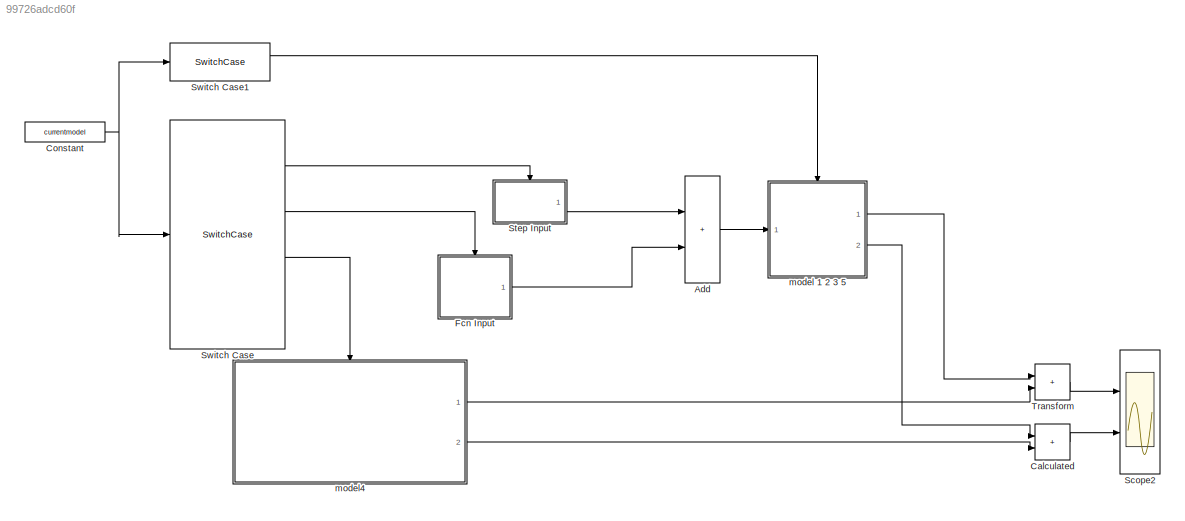
MODEL slx_99726adcd60f
KIND model
CONFIG AbsTol = auto
CONFIG EnableMultiTasking = off
CONFIG FixedStep = auto
CONFIG MaxStep = 1e-3
CONFIG MinStep = auto
CONFIG RelTol = auto
CONFIG SampleTimeConstraint = Unconstrained
CONFIG SolverName = ode113
CONFIG StartTime = 0
CONFIG StopTime = 1.5
BLOCK [Sum] Add
  IconShape = rectangular
  Ports = [2, 1]
BLOCK [Sum] Calculated
  IconShape = rectangular
  Ports = [2, 1]
BLOCK [Constant] Constant
  Value = currentmodel
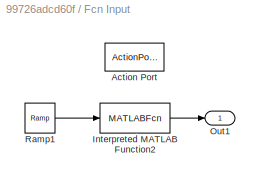
BLOCK [SubSystem] Fcn Input
  Ports = [0, 1, 0, 0, 0, 0, 0, 1]
  RequestExecContextInheritance = off
BLOCK [ActionPort] Fcn Input/Action Port
  ActionPortLabel = case [ 3 ]:
BLOCK [MATLABFcn] Fcn Input/Interpreted MATLAB Function2
  MATLABFcn = InputGt2(u)
  Ports = [1, 1]
BLOCK [Outport] Fcn Input/Out1
BLOCK [Reference] Fcn Input/Ramp1  REF=simulink/Sources/Ramp
  Ports = [0, 1]
  SourceBlock = simulink/Sources/Ramp
  SourceProductBaseCode = SL
  SourceType = Ramp
BLOCK [Scope] Scope2
  Floating = off
  NumInputPorts = 2
  Ports = [2]
  ScopeSpecificationString = Simulink.scopes.TimeScopeBlockCfg('CurrentConfiguration', extmgr.ConfigurationSet(extmgr.Configuration('Core','General UI',true),extmgr.Configuration('Core','Source UI',true),extmgr.Configuration('Sources','WiredSimulink',true,'DataLoggingVariableName','ScopeData1'),extmgr.Configuration('Visuals','Time Domain',true,'SerializedDisplays',{struct('MinYLimReal','-9.81628','MaxYLimReal','88.34655','YLa...<+1672ch>
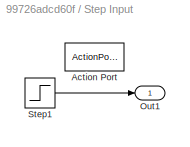
BLOCK [SubSystem] Step Input
  Ports = [0, 1, 0, 0, 0, 0, 0, 1]
  RequestExecContextInheritance = off
BLOCK [ActionPort] Step Input/Action Port
  ActionPortLabel = case [ 1 2 5 ]:
BLOCK [Outport] Step Input/Out1
BLOCK [Step] Step Input/Step1
  SampleTime = 0
  Time = 0
BLOCK [SwitchCase] Switch Case
  CaseConditions = {[1,2,5],3,4}
  Ports = [1, 4]
BLOCK [SwitchCase] Switch Case1
  CaseConditions = {[1,2,3,5]}
  Ports = [1, 2]
BLOCK [Sum] Transform
  IconShape = rectangular
  Ports = [2, 1]
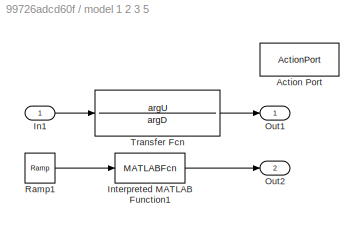
BLOCK [SubSystem] model 1 2 3 5
  Ports = [1, 2, 0, 0, 0, 0, 0, 1]
  RequestExecContextInheritance = off
BLOCK [ActionPort] model 1 2 3 5/Action Port
  ActionPortLabel = case [ 1 2 3 5 ]:
BLOCK [Inport] model 1 2 3 5/In1
BLOCK [MATLABFcn] model 1 2 3 5/Interpreted MATLAB Function1
  MATLABFcn = eqSolve(u)
  Ports = [1, 1]
BLOCK [Outport] model 1 2 3 5/Out1
BLOCK [Outport] model 1 2 3 5/Out2
  Port = 2
BLOCK [Reference] model 1 2 3 5/Ramp1  REF=simulink/Sources/Ramp
  Ports = [0, 1]
  SourceBlock = simulink/Sources/Ramp
  SourceProductBaseCode = SL
  SourceType = Ramp
BLOCK [TransferFcn] model 1 2 3 5/Transfer Fcn
  Denominator = argD
  Numerator = argU
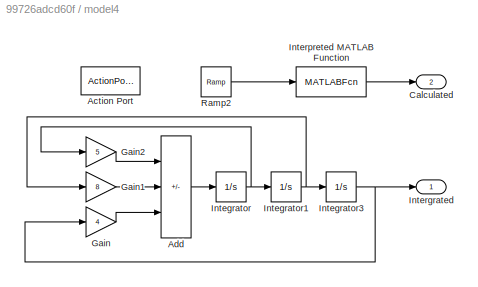
BLOCK [SubSystem] model4
  Ports = [0, 2, 0, 0, 0, 0, 0, 1]
  RequestExecContextInheritance = off
BLOCK [ActionPort] model4/Action Port
  ActionPortLabel = case [ 4 ]:
BLOCK [Sum] model4/Add
  IconShape = rectangular
  Inputs = ---
  Ports = [3, 1]
BLOCK [Outport] model4/Calculated
  Port = 2
BLOCK [Gain] model4/Gain
  Gain = 4
BLOCK [Gain] model4/Gain1
  Gain = 8
BLOCK [Gain] model4/Gain2
  Gain = 5
BLOCK [Integrator] model4/Integrator
  InitialCondition = k
  Ports = [1, 1]
BLOCK [Integrator] model4/Integrator1
  InitialCondition = -k
  Ports = [1, 1]
BLOCK [Integrator] model4/Integrator3
  InitialCondition = k
  Ports = [1, 1]
BLOCK [Outport] model4/Intergrated
BLOCK [MATLABFcn] model4/Interpreted MATLAB Function
  MATLABFcn = k*exp(-u)
  Ports = [1, 1]
BLOCK [Reference] model4/Ramp2  REF=simulink/Sources/Ramp
  Ports = [0, 1]
  SourceBlock = simulink/Sources/Ramp
  SourceProductBaseCode = SL
  SourceType = Ramp
LINE Add:1 -> model 1 2 3 5:1
LINE Calculated:1 -> Scope2:2
NET Constant:1 -> Switch Case1:1, Switch Case:1
LINE Fcn Input/Interpreted MATLAB Function2:1 -> Fcn Input/Out1:1
LINE Fcn Input/Ramp1:1 -> Fcn Input/Interpreted MATLAB Function2:1
LINE Fcn Input:1 -> Add:2
LINE Step Input/Step1:1 -> Step Input/Out1:1
LINE Step Input:1 -> Add:1
LINE Switch Case1:1 -> model 1 2 3 5:ifaction
LINE Switch Case:1 -> Step Input:ifaction
LINE Switch Case:2 -> Fcn Input:ifaction
LINE Switch Case:3 -> model4:ifaction
LINE Transform:1 -> Scope2:1
LINE model 1 2 3 5/In1:1 -> model 1 2 3 5/Transfer Fcn:1
LINE model 1 2 3 5/Interpreted MATLAB Function1:1 -> model 1 2 3 5/Out2:1
LINE model 1 2 3 5/Ramp1:1 -> model 1 2 3 5/Interpreted MATLAB Function1:1
LINE model 1 2 3 5/Transfer Fcn:1 -> model 1 2 3 5/Out1:1
LINE model 1 2 3 5:1 -> Transform:1
LINE model 1 2 3 5:2 -> Calculated:1
LINE model4/Add:1 -> model4/Integrator:1
LINE model4/Gain1:1 -> model4/Add:2
LINE model4/Gain2:1 -> model4/Add:1
LINE model4/Gain:1 -> model4/Add:3
NET model4/Integrator1:1 -> model4/Gain1:1, model4/Integrator3:1
NET model4/Integrator3:1 -> model4/Gain:1, model4/Intergrated:1
NET model4/Integrator:1 -> model4/Gain2:1, model4/Integrator1:1
LINE model4/Interpreted MATLAB Function:1 -> model4/Calculated:1
LINE model4/Ramp2:1 -> model4/Interpreted MATLAB Function:1
LINE model4:1 -> Transform:2
LINE model4:2 -> Calculated:2
note: NET lines group one-source signal fan-out (src -> all destinations, sorted); 1:1 wires keep LINE
